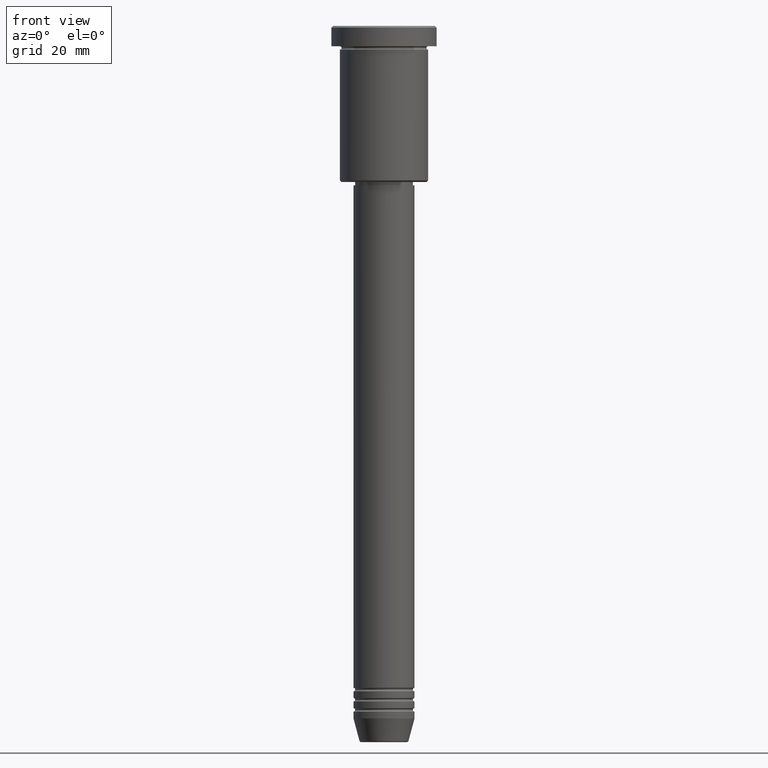
[diagram: clean part render]
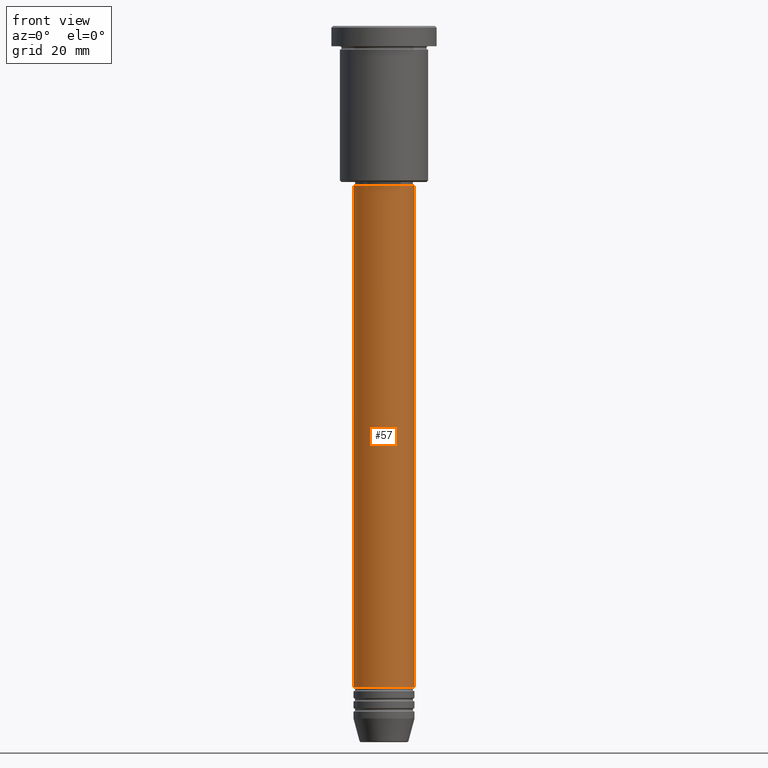
[diagram: same view with one face highlighted and labeled with its STEP entity id]
A machine part, front view. The second image highlights one B-rep face of the part: STEP entity #57.
In plain terms, the highlighted cylindrical surface (edge-blend (fillet) strip) has radius 9 mm, axis along (-0, -0, 1).
Its self-contained STEP definition (entity closure, byte-faithful):
#24 = CARTESIAN_POINT ( 'NONE',  ( -9.000000000000000000, 1.102182119232617714E-15, -47.00000000000002132 ) ) ;
#31 = CARTESIAN_POINT ( 'NONE',  ( 0.000000000000000000, 0.000000000000000000, -47.00000000000002132 ) ) ;
#32 = AXIS2_PLACEMENT_3D ( 'NONE', #31, #1135, #312 ) ;
#57 = ADVANCED_FACE ( 'NONE', ( #1067 ), #814, .T. ) ;
#74 = EDGE_CURVE ( 'NONE', #193, #285, #512, .T. ) ;
#96 = CARTESIAN_POINT ( 'NONE',  ( -9.000000000000000000, 1.102182119232617714E-15, -195.0000000000000000 ) ) ;
#138 = EDGE_CURVE ( 'NONE', #588, #840, #643, .T. ) ;
#172 = CARTESIAN_POINT ( 'NONE',  ( 0.000000000000000000, 0.000000000000000000, -195.0000000000000000 ) ) ;
#192 = DIRECTION ( 'NONE',  ( -0.000000000000000000, -0.000000000000000000, 1.000000000000000000 ) ) ;
#193 = VERTEX_POINT ( 'NONE', #96 ) ;
#210 = EDGE_CURVE ( 'NONE', #193, #588, #827, .T. ) ;
#212 = AXIS2_PLACEMENT_3D ( 'NONE', #248, #626, #426 ) ;
#248 = CARTESIAN_POINT ( 'NONE',  ( 0.000000000000000000, 0.000000000000000000, 0.000000000000000000 ) ) ;
#251 = CARTESIAN_POINT ( 'NONE',  ( 9.000000000000000000, 0.000000000000000000, -195.0000000000000000 ) ) ;
#285 = VERTEX_POINT ( 'NONE', #251 ) ;
#308 = ORIENTED_EDGE ( 'NONE', *, *, #138, .F. ) ;
#312 = DIRECTION ( 'NONE',  ( 1.000000000000000000, 0.000000000000000000, 0.000000000000000000 ) ) ;
#426 = DIRECTION ( 'NONE',  ( 1.000000000000000000, 0.000000000000000000, 0.000000000000000000 ) ) ;
#462 = LINE ( 'NONE', #1093, #558 ) ;
#512 = CIRCLE ( 'NONE', #715, 9.000000000000000000 ) ;
#545 = EDGE_LOOP ( 'NONE', ( #1049, #592, #680, #308 ) ) ;
#558 = VECTOR ( 'NONE', #192, 1000.000000000000000 ) ;
#588 = VERTEX_POINT ( 'NONE', #24 ) ;
#592 = ORIENTED_EDGE ( 'NONE', *, *, #74, .T. ) ;
#626 = DIRECTION ( 'NONE',  ( -0.000000000000000000, -0.000000000000000000, 1.000000000000000000 ) ) ;
#643 = CIRCLE ( 'NONE', #32, 9.000000000000000000 ) ;
#680 = ORIENTED_EDGE ( 'NONE', *, *, #984, .T. ) ;
#697 = CARTESIAN_POINT ( 'NONE',  ( 9.000000000000000000, 0.000000000000000000, -47.00000000000002132 ) ) ;
#715 = AXIS2_PLACEMENT_3D ( 'NONE', #172, #998, #1152 ) ;
#814 = CYLINDRICAL_SURFACE ( 'NONE', #212, 9.000000000000000000 ) ;
#827 = LINE ( 'NONE', #1053, #976 ) ;
#840 = VERTEX_POINT ( 'NONE', #697 ) ;
#861 = DIRECTION ( 'NONE',  ( -0.000000000000000000, -0.000000000000000000, 1.000000000000000000 ) ) ;
#976 = VECTOR ( 'NONE', #861, 1000.000000000000000 ) ;
#984 = EDGE_CURVE ( 'NONE', #285, #840, #462, .T. ) ;
#998 = DIRECTION ( 'NONE',  ( -0.000000000000000000, -0.000000000000000000, 1.000000000000000000 ) ) ;
#1049 = ORIENTED_EDGE ( 'NONE', *, *, #210, .F. ) ;
#1053 = CARTESIAN_POINT ( 'NONE',  ( -9.000000000000000000, 1.102182119232617714E-15, 0.000000000000000000 ) ) ;
#1067 = FACE_OUTER_BOUND ( 'NONE', #545, .T. ) ;
#1093 = CARTESIAN_POINT ( 'NONE',  ( 9.000000000000000000, 0.000000000000000000, 0.000000000000000000 ) ) ;
#1135 = DIRECTION ( 'NONE',  ( -0.000000000000000000, -0.000000000000000000, 1.000000000000000000 ) ) ;
#1152 = DIRECTION ( 'NONE',  ( 1.000000000000000000, 0.000000000000000000, 0.000000000000000000 ) ) ;